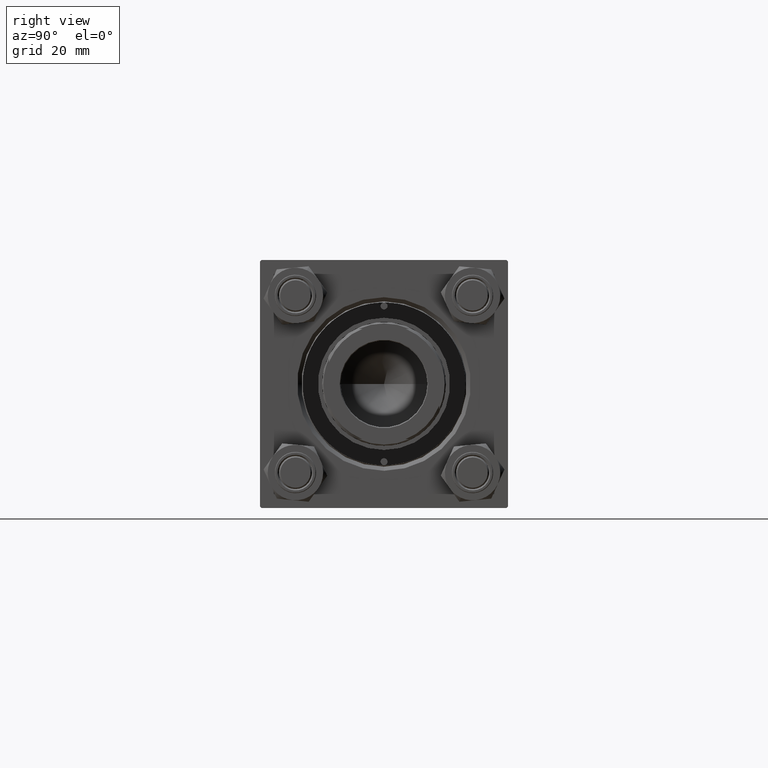
[diagram: clean part render]
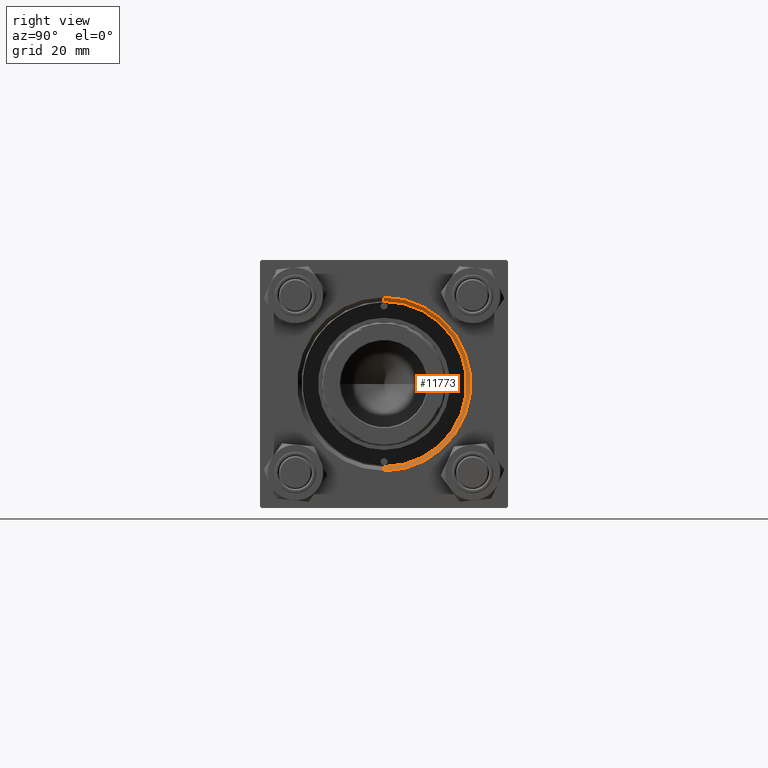
[diagram: same view with one face highlighted and labeled with its STEP entity id]
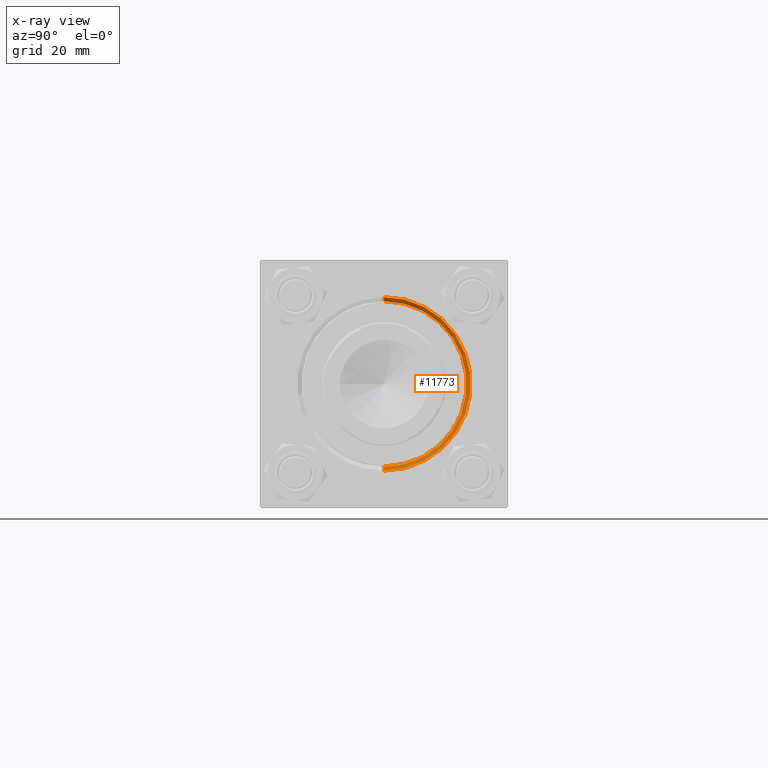
[diagram: x-ray of the same camera — body ghosted, the highlighted face saturated]
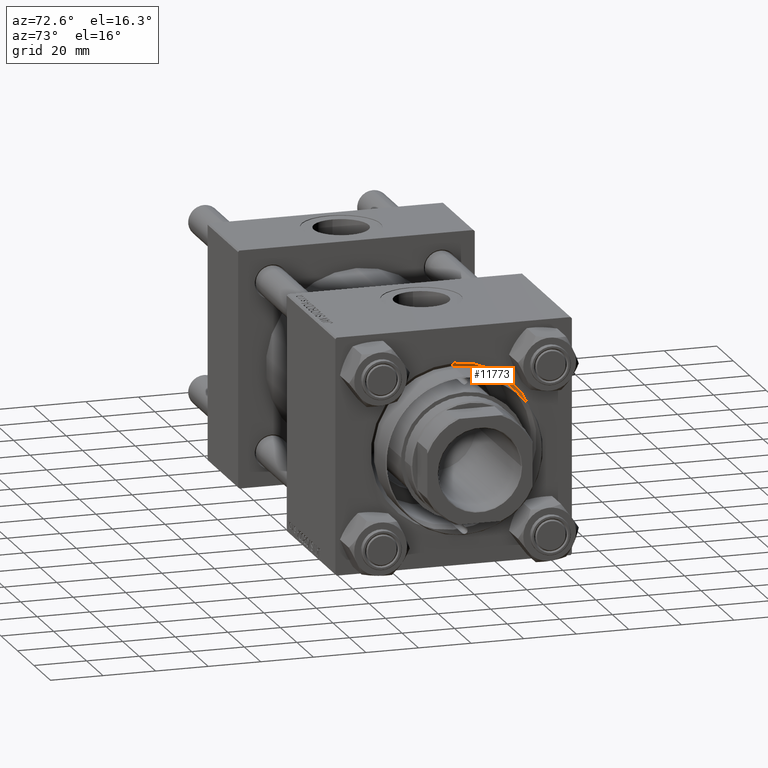
[diagram: same view with one face highlighted and labeled with its STEP entity id]
A machine part, right view. The second image highlights one B-rep face of the part: STEP entity #11773.
The next image is the same camera in x-ray: the body ghosted, the highlighted face saturated — about 0% of this face is hidden behind the body in this view.
A second angle (auxiliary view) of the same face is appended — the face is thin or edge-on in the first view.
In plain terms, the highlighted conical surface has half-angle 45 deg.
Its self-contained STEP definition (entity closure, byte-faithful):
#969 = DIRECTION ( 'NONE',  ( 1.000000000000000000, 0.000000000000000000, 0.000000000000000000 ) ) ;
#1434 = EDGE_CURVE ( 'NONE', #25880, #37122, #18226, .T. ) ;
#2644 = FACE_OUTER_BOUND ( 'NONE', #40741, .T. ) ;
#4346 = ORIENTED_EDGE ( 'NONE', *, *, #39475, .T. ) ;
#4836 = DIRECTION ( 'NONE',  ( 0.000000000000000000, 0.000000000000000000, 1.000000000000000000 ) ) ;
#6087 = CARTESIAN_POINT ( 'NONE',  ( 153.5000000000000000, 0.000000000000000000, -30.00000000000000000 ) ) ;
#8627 = DIRECTION ( 'NONE',  ( 1.000000000000000000, 0.000000000000000000, 0.000000000000000000 ) ) ;
#9430 = VECTOR ( 'NONE', #40873, 1000.000000000000114 ) ;
#9797 = VERTEX_POINT ( 'NONE', #31343 ) ;
#9829 = EDGE_CURVE ( 'NONE', #37122, #23879, #27612, .T. ) ;
#11709 = DIRECTION ( 'NONE',  ( 0.000000000000000000, 0.000000000000000000, 1.000000000000000000 ) ) ;
#11773 = ADVANCED_FACE ( 'NONE', ( #2644 ), #31556, .F. ) ;
#12443 = DIRECTION ( 'NONE',  ( -1.000000000000000000, -0.000000000000000000, -0.000000000000000000 ) ) ;
#15693 = ORIENTED_EDGE ( 'NONE', *, *, #1434, .F. ) ;
#17879 = AXIS2_PLACEMENT_3D ( 'NONE', #23913, #969, #47772 ) ;
#18226 = LINE ( 'NONE', #41437, #31354 ) ;
#19550 = AXIS2_PLACEMENT_3D ( 'NONE', #27072, #12443, #11709 ) ;
#22266 = DIRECTION ( 'NONE',  ( 0.7071067811865474617, 8.659560562354932858E-17, 0.7071067811865474617 ) ) ;
#22570 = EDGE_CURVE ( 'NONE', #9797, #25880, #41214, .T. ) ;
#23879 = VERTEX_POINT ( 'NONE', #48568 ) ;
#23913 = CARTESIAN_POINT ( 'NONE',  ( 153.5000000000000000, 0.000000000000000000, 0.000000000000000000 ) ) ;
#25880 = VERTEX_POINT ( 'NONE', #49084 ) ;
#26858 = ORIENTED_EDGE ( 'NONE', *, *, #9829, .F. ) ;
#27072 = CARTESIAN_POINT ( 'NONE',  ( 155.0000000000000000, 0.000000000000000000, 0.000000000000000000 ) ) ;
#27612 = CIRCLE ( 'NONE', #19550, 31.50000000000000000 ) ;
#29275 = LINE ( 'NONE', #6087, #9430 ) ;
#31343 = CARTESIAN_POINT ( 'NONE',  ( 153.5000000000000000, 0.000000000000000000, -30.00000000000000000 ) ) ;
#31354 = VECTOR ( 'NONE', #22266, 1000.000000000000114 ) ;
#31556 = CONICAL_SURFACE ( 'NONE', #17879, 30.00000000000000000, 0.7853981633974482790 ) ;
#37122 = VERTEX_POINT ( 'NONE', #41109 ) ;
#38808 = AXIS2_PLACEMENT_3D ( 'NONE', #43151, #8627, #4836 ) ;
#39475 = EDGE_CURVE ( 'NONE', #9797, #23879, #29275, .T. ) ;
#40741 = EDGE_LOOP ( 'NONE', ( #15693, #41987, #4346, #26858 ) ) ;
#40873 = DIRECTION ( 'NONE',  ( 0.7071067811865474617, 0.000000000000000000, -0.7071067811865474617 ) ) ;
#41109 = CARTESIAN_POINT ( 'NONE',  ( 155.0000000000000000, 3.857637417314162689E-15, 31.50000000000000000 ) ) ;
#41214 = CIRCLE ( 'NONE', #38808, 30.00000000000000000 ) ;
#41437 = CARTESIAN_POINT ( 'NONE',  ( 153.5000000000000000, 3.673940397442059178E-15, 30.00000000000000000 ) ) ;
#41987 = ORIENTED_EDGE ( 'NONE', *, *, #22570, .F. ) ;
#43151 = CARTESIAN_POINT ( 'NONE',  ( 153.5000000000000000, 0.000000000000000000, 0.000000000000000000 ) ) ;
#47772 = DIRECTION ( 'NONE',  ( 0.000000000000000000, 0.000000000000000000, -1.000000000000000000 ) ) ;
#48568 = CARTESIAN_POINT ( 'NONE',  ( 155.0000000000000000, 0.000000000000000000, -31.50000000000000000 ) ) ;
#49084 = CARTESIAN_POINT ( 'NONE',  ( 153.5000000000000000, 3.673940397442059178E-15, 30.00000000000000000 ) ) ;